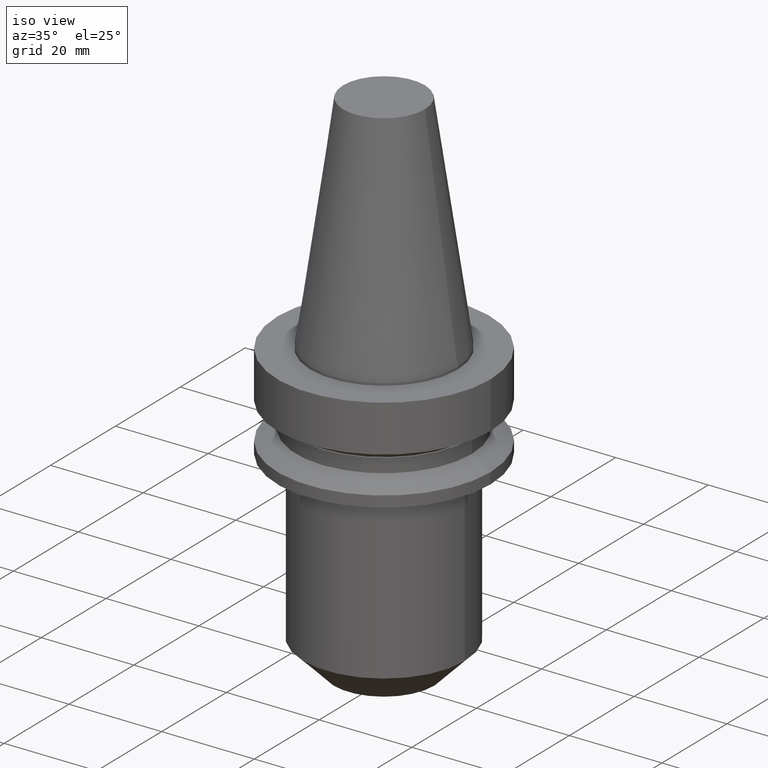
[diagram: clean part render]
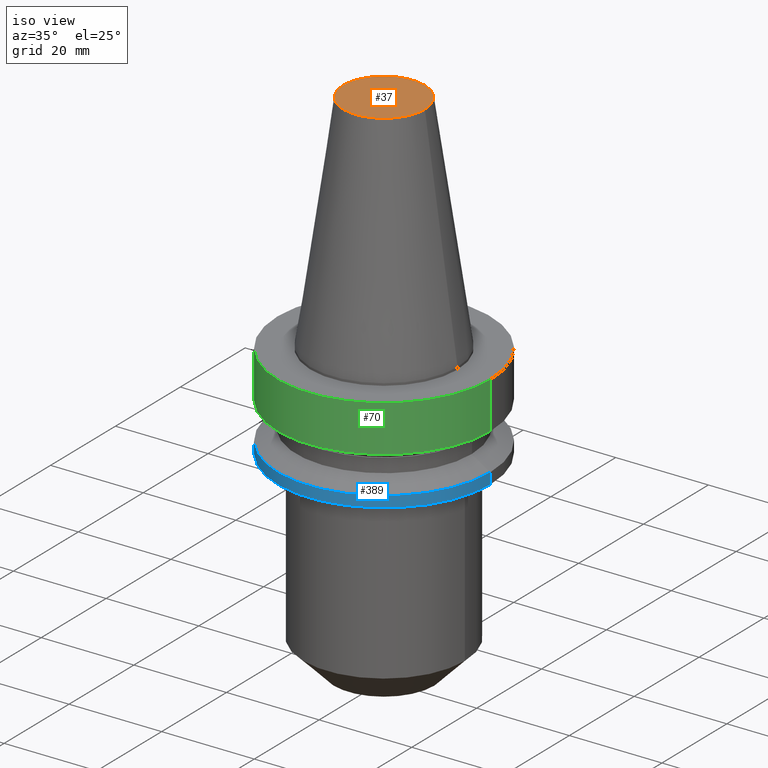
[diagram: same view with three faces highlighted in distinct colors, each labeled with its STEP entity id]
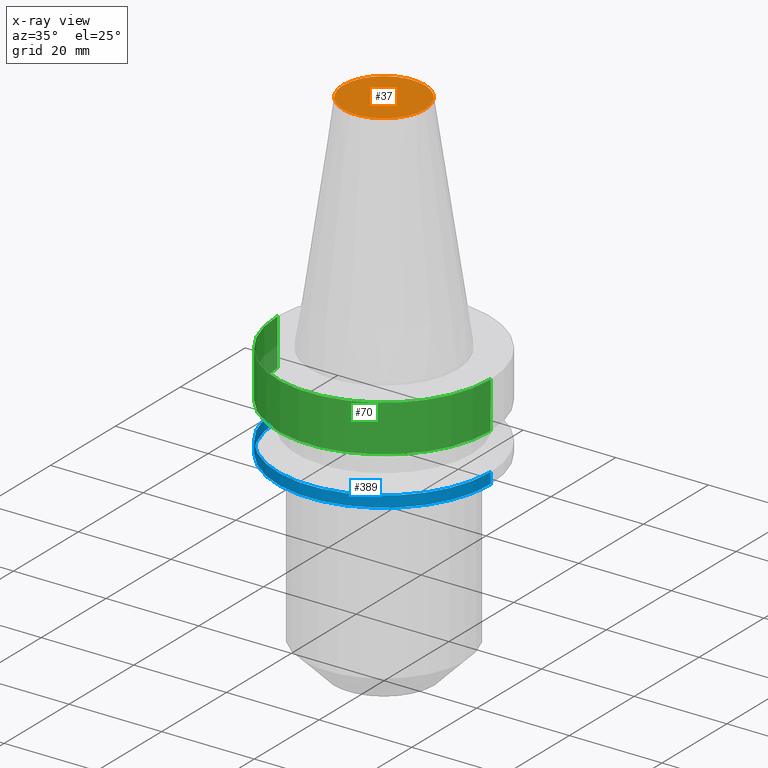
[diagram: x-ray of the same camera — body ghosted, the three highlighted faces saturated]
A machine part, iso view with three faces highlighted in distinct colors.
The next image is the same camera in x-ray (body ghosted, the three faces saturated) — at least one of them is partly hidden behind the body in this view.
Their STEP definitions:

[orange] entity #37 — the highlighted planar face has unit normal (0, 0, -1).
#3 = EDGE_CURVE ( 'NONE', #318, #515, #60, .T. ) ;
#37 = ADVANCED_FACE ( 'NONE', ( #614 ), #258, .F. ) ;
#60 = CIRCLE ( 'NONE', #357, 8.816600212367498912 ) ;
#130 = CARTESIAN_POINT ( 'NONE',  ( 0.000000000000000000, 0.000000000000000000, 48.39999999999999858 ) ) ;
#143 = DIRECTION ( 'NONE',  ( -1.000000000000000000, 0.000000000000000000, -0.000000000000000000 ) ) ;
#155 = CARTESIAN_POINT ( 'NONE',  ( -8.816600212367498912, 0.000000000000000000, 48.39999999999999858 ) ) ;
#242 = CIRCLE ( 'NONE', #709, 8.816600212367498912 ) ;
#258 = PLANE ( 'NONE',  #260 ) ;
#260 = AXIS2_PLACEMENT_3D ( 'NONE', #674, #492, #143 ) ;
#265 = CARTESIAN_POINT ( 'NONE',  ( 8.816600212367498912, 1.511924458295098338E-15, 48.39999999999999858 ) ) ;
#318 = VERTEX_POINT ( 'NONE', #155 ) ;
#332 = ORIENTED_EDGE ( 'NONE', *, *, #3, .T. ) ;
#357 = AXIS2_PLACEMENT_3D ( 'NONE', #130, #363, #602 ) ;
#363 = DIRECTION ( 'NONE',  ( -0.000000000000000000, -0.000000000000000000, 1.000000000000000000 ) ) ;
#456 = ORIENTED_EDGE ( 'NONE', *, *, #563, .T. ) ;
#489 = CARTESIAN_POINT ( 'NONE',  ( 0.000000000000000000, 0.000000000000000000, 48.39999999999999858 ) ) ;
#492 = DIRECTION ( 'NONE',  ( 0.000000000000000000, 0.000000000000000000, -1.000000000000000000 ) ) ;
#515 = VERTEX_POINT ( 'NONE', #265 ) ;
#546 = DIRECTION ( 'NONE',  ( 1.000000000000000000, 0.000000000000000000, 0.000000000000000000 ) ) ;
#563 = EDGE_CURVE ( 'NONE', #515, #318, #242, .T. ) ;
#602 = DIRECTION ( 'NONE',  ( 1.000000000000000000, 0.000000000000000000, 0.000000000000000000 ) ) ;
#614 = FACE_OUTER_BOUND ( 'NONE', #685, .T. ) ;
#674 = CARTESIAN_POINT ( 'NONE',  ( 0.000000000000000000, 8.816600212367498912, 48.39999999999999147 ) ) ;
#685 = EDGE_LOOP ( 'NONE', ( #332, #456 ) ) ;
#709 = AXIS2_PLACEMENT_3D ( 'NONE', #489, #738, #546 ) ;
#738 = DIRECTION ( 'NONE',  ( -0.000000000000000000, -0.000000000000000000, 1.000000000000000000 ) ) ;

[blue] entity #389 — the highlighted cylindrical surface (partial cylindrical patch) has radius 23 mm, axis along (-0, -0, 1).
#1 = ORIENTED_EDGE ( 'NONE', *, *, #200, .F. ) ;
#14 = DIRECTION ( 'NONE',  ( -0.000000000000000000, -0.000000000000000000, 1.000000000000000000 ) ) ;
#16 = CARTESIAN_POINT ( 'NONE',  ( 22.99999999999999289, 0.000000000000000000, -21.00000000000000355 ) ) ;
#91 = ORIENTED_EDGE ( 'NONE', *, *, #120, .F. ) ;
#99 = CIRCLE ( 'NONE', #534, 23.00000000000000000 ) ;
#110 = LINE ( 'NONE', #336, #160 ) ;
#113 = CARTESIAN_POINT ( 'NONE',  ( 0.000000000000000000, 0.000000000000000000, 48.39999999999998437 ) ) ;
#116 = EDGE_CURVE ( 'NONE', #280, #566, #770, .T. ) ;
#120 = EDGE_CURVE ( 'NONE', #539, #509, #99, .T. ) ;
#145 = CARTESIAN_POINT ( 'NONE',  ( -23.00000000000000000, 2.816687638038912746E-15, -18.60014200631680836 ) ) ;
#160 = VECTOR ( 'NONE', #387, 1000.000000000000000 ) ;
#200 = EDGE_CURVE ( 'NONE', #280, #539, #110, .T. ) ;
#218 = CARTESIAN_POINT ( 'NONE',  ( -22.99999999999999289, 2.816687638038911957E-15, -21.00000000000000355 ) ) ;
#266 = CARTESIAN_POINT ( 'NONE',  ( 0.000000000000000000, 0.000000000000000000, -18.60014200631680836 ) ) ;
#280 = VERTEX_POINT ( 'NONE', #218 ) ;
#316 = CARTESIAN_POINT ( 'NONE',  ( 23.00000000000000000, 0.000000000000000000, -18.60014200631680836 ) ) ;
#324 = AXIS2_PLACEMENT_3D ( 'NONE', #113, #775, #652 ) ;
#327 = CARTESIAN_POINT ( 'NONE',  ( 0.000000000000000000, 0.000000000000000000, -21.00000000000000355 ) ) ;
#336 = CARTESIAN_POINT ( 'NONE',  ( -22.99999999999999645, 2.816687638038911957E-15, 48.39999999999998437 ) ) ;
#365 = DIRECTION ( 'NONE',  ( 1.000000000000000000, 0.000000000000000000, 0.000000000000000000 ) ) ;
#387 = DIRECTION ( 'NONE',  ( -0.000000000000000000, -0.000000000000000000, 1.000000000000000000 ) ) ;
#389 = ADVANCED_FACE ( 'NONE', ( #472 ), #639, .T. ) ;
#424 = CARTESIAN_POINT ( 'NONE',  ( 22.99999999999999645, 0.000000000000000000, 48.39999999999998437 ) ) ;
#440 = DIRECTION ( 'NONE',  ( 1.000000000000000000, 0.000000000000000000, 0.000000000000000000 ) ) ;
#472 = FACE_OUTER_BOUND ( 'NONE', #721, .T. ) ;
#490 = DIRECTION ( 'NONE',  ( -0.000000000000000000, -0.000000000000000000, 1.000000000000000000 ) ) ;
#509 = VERTEX_POINT ( 'NONE', #316 ) ;
#534 = AXIS2_PLACEMENT_3D ( 'NONE', #266, #677, #440 ) ;
#539 = VERTEX_POINT ( 'NONE', #145 ) ;
#540 = EDGE_CURVE ( 'NONE', #566, #509, #659, .T. ) ;
#566 = VERTEX_POINT ( 'NONE', #16 ) ;
#573 = VECTOR ( 'NONE', #14, 1000.000000000000000 ) ;
#627 = AXIS2_PLACEMENT_3D ( 'NONE', #327, #490, #365 ) ;
#637 = ORIENTED_EDGE ( 'NONE', *, *, #116, .T. ) ;
#639 = CYLINDRICAL_SURFACE ( 'NONE', #324, 22.99999999999999645 ) ;
#652 = DIRECTION ( 'NONE',  ( 1.000000000000000000, 0.000000000000000000, 0.000000000000000000 ) ) ;
#659 = LINE ( 'NONE', #424, #573 ) ;
#677 = DIRECTION ( 'NONE',  ( -0.000000000000000000, -0.000000000000000000, 1.000000000000000000 ) ) ;
#721 = EDGE_LOOP ( 'NONE', ( #1, #637, #768, #91 ) ) ;
#768 = ORIENTED_EDGE ( 'NONE', *, *, #540, .T. ) ;
#770 = CIRCLE ( 'NONE', #627, 22.99999999999999289 ) ;
#775 = DIRECTION ( 'NONE',  ( -0.000000000000000000, -0.000000000000000000, 1.000000000000000000 ) ) ;

[green] entity #70 — the highlighted cylindrical surface (partial cylindrical patch) has radius 23 mm, axis along (-0, -0, 1).
#23 = AXIS2_PLACEMENT_3D ( 'NONE', #90, #210, #146 ) ;
#28 = EDGE_LOOP ( 'NONE', ( #285, #512, #678, #140 ) ) ;
#64 = AXIS2_PLACEMENT_3D ( 'NONE', #749, #757, #231 ) ;
#70 = ADVANCED_FACE ( 'NONE', ( #85 ), #728, .T. ) ;
#75 = LINE ( 'NONE', #196, #312 ) ;
#85 = FACE_OUTER_BOUND ( 'NONE', #28, .T. ) ;
#90 = CARTESIAN_POINT ( 'NONE',  ( 0.000000000000000000, 0.000000000000000000, 48.39999999999998437 ) ) ;
#108 = VERTEX_POINT ( 'NONE', #734 ) ;
#115 = VERTEX_POINT ( 'NONE', #255 ) ;
#129 = EDGE_CURVE ( 'NONE', #108, #165, #75, .T. ) ;
#140 = ORIENTED_EDGE ( 'NONE', *, *, #412, .F. ) ;
#146 = DIRECTION ( 'NONE',  ( 1.000000000000000000, 0.000000000000000000, 0.000000000000000000 ) ) ;
#157 = LINE ( 'NONE', #444, #496 ) ;
#162 = CARTESIAN_POINT ( 'NONE',  ( 23.00000000000000000, 0.000000000000000000, -0.5000000000000004441 ) ) ;
#165 = VERTEX_POINT ( 'NONE', #373 ) ;
#196 = CARTESIAN_POINT ( 'NONE',  ( -23.00000000000000355, 2.816687638038912746E-15, 48.39999999999998437 ) ) ;
#210 = DIRECTION ( 'NONE',  ( -0.000000000000000000, -0.000000000000000000, 1.000000000000000000 ) ) ;
#231 = DIRECTION ( 'NONE',  ( 1.000000000000000000, 0.000000000000000000, 0.000000000000000000 ) ) ;
#255 = CARTESIAN_POINT ( 'NONE',  ( 23.00000000000000711, 0.000000000000000000, -10.60014200631680126 ) ) ;
#271 = DIRECTION ( 'NONE',  ( -0.000000000000000000, -0.000000000000000000, 1.000000000000000000 ) ) ;
#285 = ORIENTED_EDGE ( 'NONE', *, *, #129, .F. ) ;
#303 = CIRCLE ( 'NONE', #64, 23.00000000000000711 ) ;
#312 = VECTOR ( 'NONE', #427, 1000.000000000000000 ) ;
#335 = EDGE_CURVE ( 'NONE', #108, #115, #303, .T. ) ;
#373 = CARTESIAN_POINT ( 'NONE',  ( -23.00000000000000000, 2.816687638038912746E-15, -0.5000000000000004441 ) ) ;
#412 = EDGE_CURVE ( 'NONE', #165, #754, #482, .T. ) ;
#427 = DIRECTION ( 'NONE',  ( -0.000000000000000000, -0.000000000000000000, 1.000000000000000000 ) ) ;
#444 = CARTESIAN_POINT ( 'NONE',  ( 23.00000000000000355, 0.000000000000000000, 48.39999999999998437 ) ) ;
#457 = AXIS2_PLACEMENT_3D ( 'NONE', #645, #528, #766 ) ;
#482 = CIRCLE ( 'NONE', #457, 23.00000000000000000 ) ;
#496 = VECTOR ( 'NONE', #271, 1000.000000000000000 ) ;
#512 = ORIENTED_EDGE ( 'NONE', *, *, #335, .T. ) ;
#528 = DIRECTION ( 'NONE',  ( -0.000000000000000000, -0.000000000000000000, 1.000000000000000000 ) ) ;
#645 = CARTESIAN_POINT ( 'NONE',  ( 0.000000000000000000, 0.000000000000000000, -0.5000000000000004441 ) ) ;
#678 = ORIENTED_EDGE ( 'NONE', *, *, #690, .T. ) ;
#690 = EDGE_CURVE ( 'NONE', #115, #754, #157, .T. ) ;
#728 = CYLINDRICAL_SURFACE ( 'NONE', #23, 23.00000000000000355 ) ;
#734 = CARTESIAN_POINT ( 'NONE',  ( -23.00000000000000711, 2.816687638038913141E-15, -10.60014200631680126 ) ) ;
#749 = CARTESIAN_POINT ( 'NONE',  ( 0.000000000000000000, 0.000000000000000000, -10.60014200631680126 ) ) ;
#754 = VERTEX_POINT ( 'NONE', #162 ) ;
#757 = DIRECTION ( 'NONE',  ( -0.000000000000000000, -0.000000000000000000, 1.000000000000000000 ) ) ;
#766 = DIRECTION ( 'NONE',  ( 1.000000000000000000, 0.000000000000000000, 0.000000000000000000 ) ) ;